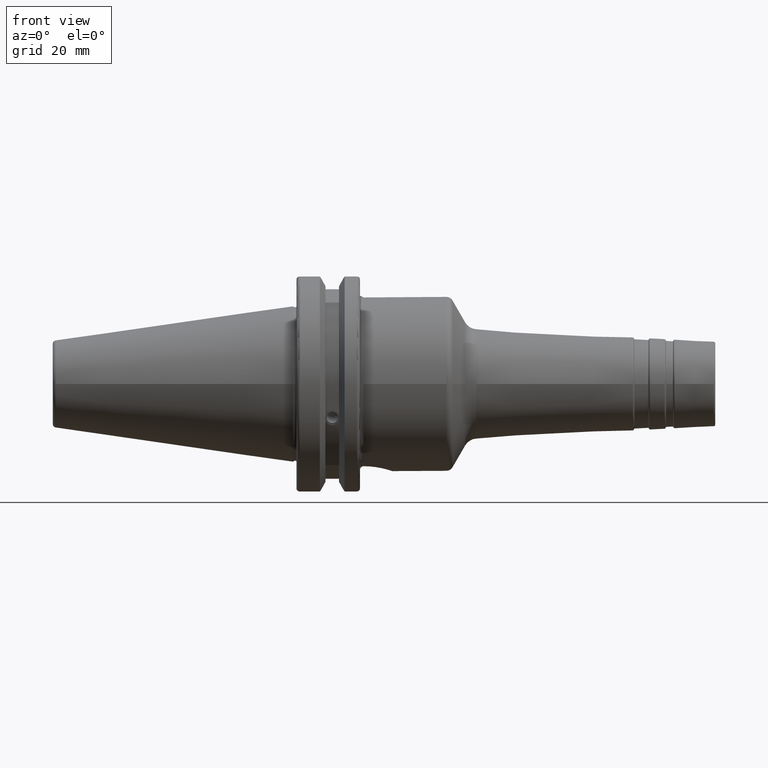
[diagram: clean part render]
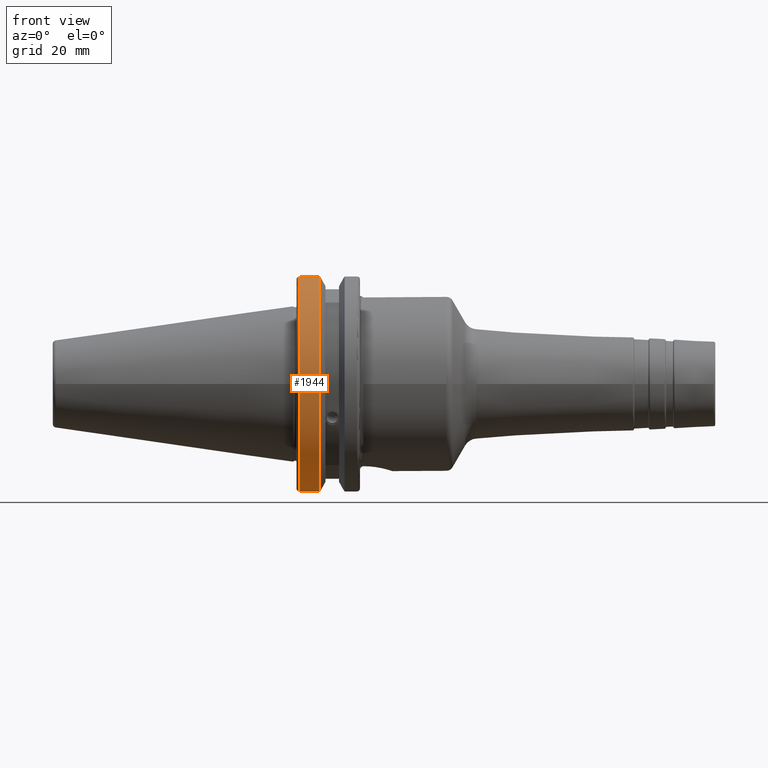
[diagram: same view with one face highlighted and labeled with its STEP entity id]
A machine part, front view. The second image highlights one B-rep face of the part: STEP entity #1944.
In plain terms, the highlighted cylindrical surface (partial cylindrical patch) has radius 31.75 mm, axis along (1, 0, 0).
Its self-contained STEP definition (entity closure, byte-faithful):
#79=CYLINDRICAL_SURFACE('',#2217,31.75);
#245=LINE('',#3684,#340);
#250=LINE('',#3741,#345);
#340=VECTOR('',#2698,10.);
#345=VECTOR('',#2733,10.);
#483=FACE_OUTER_BOUND('',#605,.T.);
#605=EDGE_LOOP('',(#1795,#1796,#1797,#1798));
#713=CIRCLE('',#2163,31.75);
#737=CIRCLE('',#2218,31.75);
#908=VERTEX_POINT('',#3651);
#909=VERTEX_POINT('',#3660);
#914=VERTEX_POINT('',#3683);
#923=VERTEX_POINT('',#3737);
#1172=EDGE_CURVE('',#908,#909,#713,.T.);
#1181=EDGE_CURVE('',#909,#914,#245,.T.);
#1198=EDGE_CURVE('',#923,#908,#250,.T.);
#1227=EDGE_CURVE('',#914,#923,#737,.T.);
#1795=ORIENTED_EDGE('',*,*,#1172,.F.);
#1796=ORIENTED_EDGE('',*,*,#1198,.F.);
#1797=ORIENTED_EDGE('',*,*,#1227,.F.);
#1798=ORIENTED_EDGE('',*,*,#1181,.F.);
#1944=ADVANCED_FACE('',(#483),#79,.T.);
#2163=AXIS2_PLACEMENT_3D('',#3661,#2682,#2683);
#2217=AXIS2_PLACEMENT_3D('',#3810,#2811,#2812);
#2218=AXIS2_PLACEMENT_3D('',#3811,#2813,#2814);
#2682=DIRECTION('center_axis',(-1.,0.,0.));
#2683=DIRECTION('ref_axis',(0.,-1.,1.60812264967664E-16));
#2698=DIRECTION('',(1.,0.,0.));
#2733=DIRECTION('',(-1.,0.,0.));
#2811=DIRECTION('center_axis',(1.,0.,0.));
#2812=DIRECTION('ref_axis',(0.,-1.,1.22464679914735E-16));
#2813=DIRECTION('center_axis',(1.,0.,0.));
#2814=DIRECTION('ref_axis',(0.,0.,-1.));
#3651=CARTESIAN_POINT('',(2.,-8.67204822802685,-30.5427254764662));
#3660=CARTESIAN_POINT('',(2.,-8.67204822802685,30.5427254764662));
#3661=CARTESIAN_POINT('Origin',(2.,0.,0.));
#3683=CARTESIAN_POINT('',(7.64983323092436,-8.67204822802685,30.5427254764662));
#3684=CARTESIAN_POINT('',(4.32491661546218,-8.67204822802685,30.5427254764662));
#3737=CARTESIAN_POINT('',(7.64983323092436,-8.67204822802685,-30.5427254764662));
#3741=CARTESIAN_POINT('',(4.32491661546218,-8.67204822802685,-30.5427254764662));
#3810=CARTESIAN_POINT('Origin',(4.32491661546218,0.,0.));
#3811=CARTESIAN_POINT('Origin',(7.64983323092436,0.,0.));